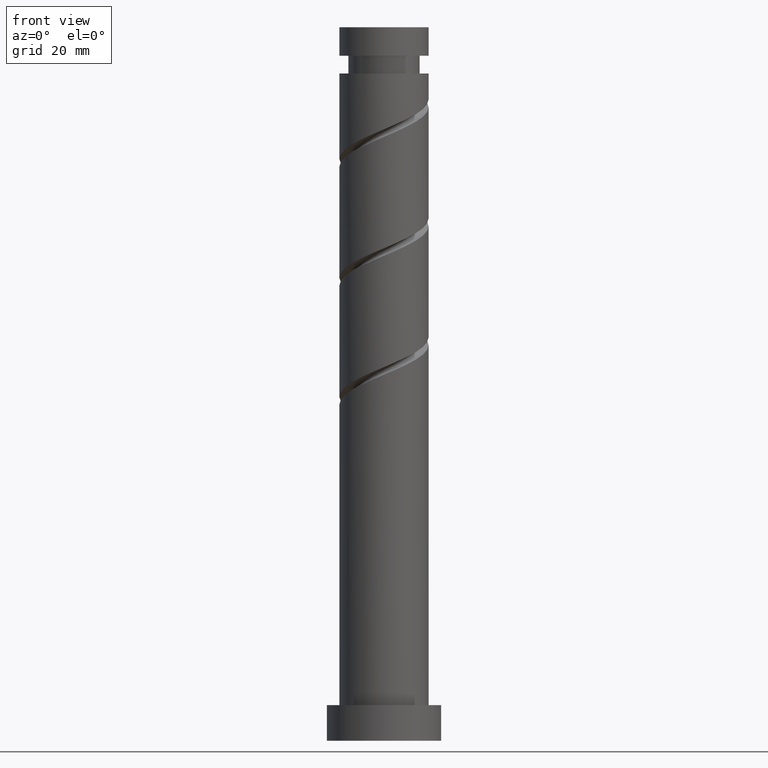
[diagram: clean part render]
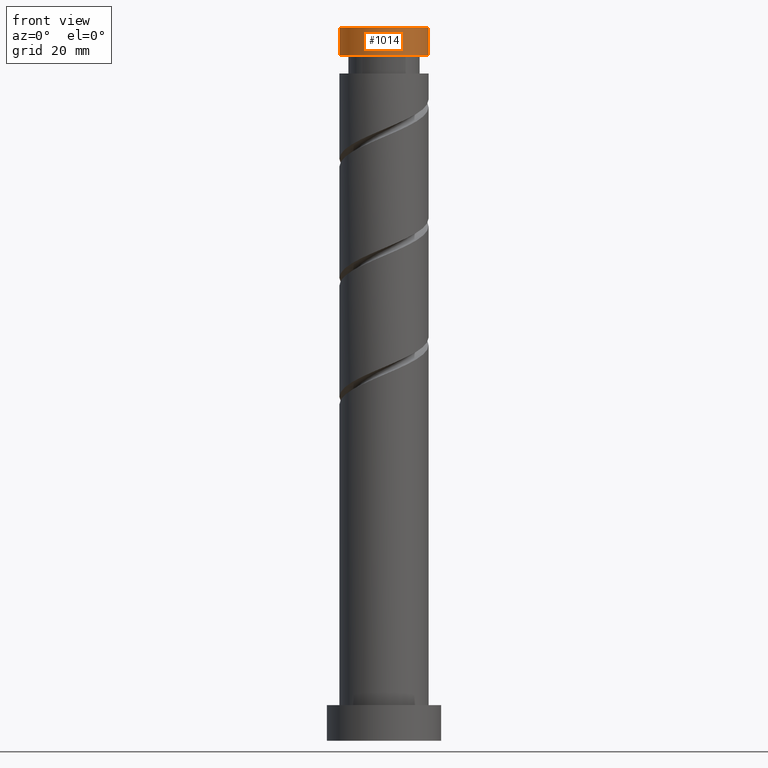
[diagram: same view with one face highlighted and labeled with its STEP entity id]
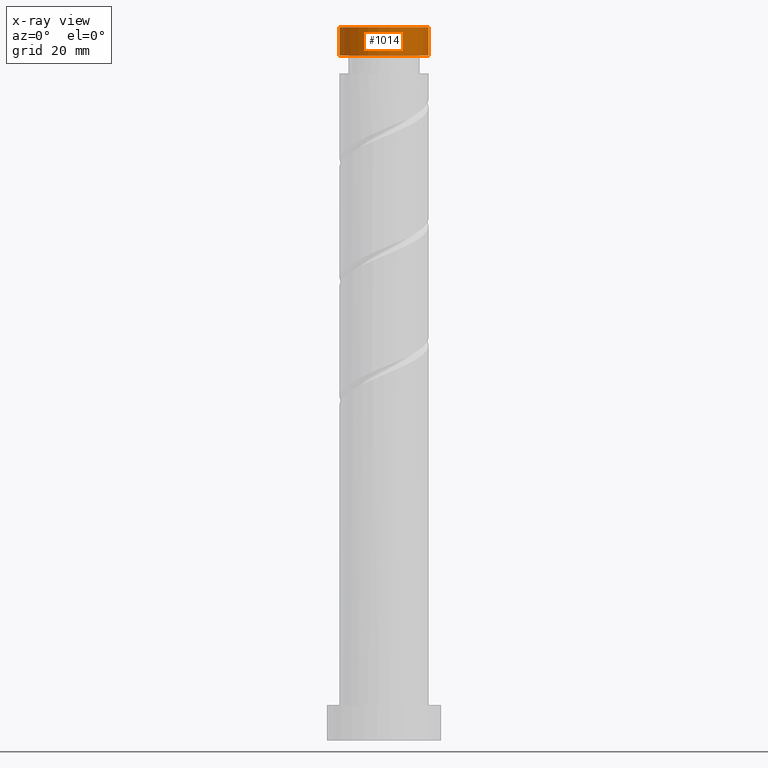
[diagram: x-ray of the same camera — body ghosted, the highlighted face saturated]
A machine part, front view. The second image highlights one B-rep face of the part: STEP entity #1014.
The next image is the same camera in x-ray: the body ghosted, the highlighted face saturated — about 0% of this face is hidden behind the body in this view.
In plain terms, the highlighted cylindrical surface (partial cylindrical patch) has radius 12.5 mm, axis along (-0, -0, -1).
Its self-contained STEP definition (entity closure, byte-faithful):
#48 = DIRECTION ( 'NONE',  ( -1.000000000000000000, 0.000000000000000000, 0.000000000000000000 ) ) ;
#76 = LINE ( 'NONE', #478, #1344 ) ;
#96 = CARTESIAN_POINT ( 'NONE',  ( 12.50000000000000000, 1.530808498934191521E-15, 200.0000000000000000 ) ) ;
#183 = ORIENTED_EDGE ( 'NONE', *, *, #1465, .F. ) ;
#267 = VERTEX_POINT ( 'NONE', #1061 ) ;
#273 = DIRECTION ( 'NONE',  ( -1.000000000000000000, 0.000000000000000000, 0.000000000000000000 ) ) ;
#358 = LINE ( 'NONE', #96, #1183 ) ;
#379 = AXIS2_PLACEMENT_3D ( 'NONE', #1579, #1715, #654 ) ;
#403 = CARTESIAN_POINT ( 'NONE',  ( 12.49999999999999112, 1.530808498934190732E-15, 192.0234905849320342 ) ) ;
#465 = CIRCLE ( 'NONE', #1540, 12.49999999999999112 ) ;
#478 = CARTESIAN_POINT ( 'NONE',  ( -12.50000000000000000, 0.000000000000000000, 200.0000000000000000 ) ) ;
#637 = FACE_OUTER_BOUND ( 'NONE', #1321, .T. ) ;
#654 = DIRECTION ( 'NONE',  ( 1.000000000000000000, 0.000000000000000000, 0.000000000000000000 ) ) ;
#735 = DIRECTION ( 'NONE',  ( -0.000000000000000000, -0.000000000000000000, -1.000000000000000000 ) ) ;
#755 = CARTESIAN_POINT ( 'NONE',  ( -12.50000000000000000, 0.000000000000000000, 200.0000000000000000 ) ) ;
#828 = EDGE_CURVE ( 'NONE', #1722, #1189, #1290, .T. ) ;
#877 = ORIENTED_EDGE ( 'NONE', *, *, #1370, .F. ) ;
#943 = DIRECTION ( 'NONE',  ( -0.000000000000000000, -0.000000000000000000, -1.000000000000000000 ) ) ;
#946 = AXIS2_PLACEMENT_3D ( 'NONE', #1486, #943, #273 ) ;
#1014 = ADVANCED_FACE ( 'NONE', ( #637 ), #1124, .T. ) ;
#1061 = CARTESIAN_POINT ( 'NONE',  ( -12.49999999999999112, 0.000000000000000000, 192.0234905849320342 ) ) ;
#1105 = VERTEX_POINT ( 'NONE', #403 ) ;
#1124 = CYLINDRICAL_SURFACE ( 'NONE', #946, 12.50000000000000000 ) ;
#1136 = CARTESIAN_POINT ( 'NONE',  ( 12.50000000000000000, 1.530808498934191521E-15, 200.0000000000000000 ) ) ;
#1183 = VECTOR ( 'NONE', #1438, 1000.000000000000000 ) ;
#1189 = VERTEX_POINT ( 'NONE', #1136 ) ;
#1283 = CARTESIAN_POINT ( 'NONE',  ( 0.000000000000000000, 0.000000000000000000, 192.0234905849320342 ) ) ;
#1290 = CIRCLE ( 'NONE', #379, 12.50000000000000000 ) ;
#1294 = DIRECTION ( 'NONE',  ( -0.000000000000000000, -0.000000000000000000, -1.000000000000000000 ) ) ;
#1321 = EDGE_LOOP ( 'NONE', ( #183, #1561, #1494, #877 ) ) ;
#1344 = VECTOR ( 'NONE', #735, 1000.000000000000000 ) ;
#1370 = EDGE_CURVE ( 'NONE', #1105, #267, #465, .T. ) ;
#1438 = DIRECTION ( 'NONE',  ( -0.000000000000000000, -0.000000000000000000, -1.000000000000000000 ) ) ;
#1465 = EDGE_CURVE ( 'NONE', #1189, #1105, #358, .T. ) ;
#1486 = CARTESIAN_POINT ( 'NONE',  ( 0.000000000000000000, 0.000000000000000000, 200.0000000000000000 ) ) ;
#1494 = ORIENTED_EDGE ( 'NONE', *, *, #1681, .T. ) ;
#1540 = AXIS2_PLACEMENT_3D ( 'NONE', #1283, #1294, #48 ) ;
#1561 = ORIENTED_EDGE ( 'NONE', *, *, #828, .F. ) ;
#1579 = CARTESIAN_POINT ( 'NONE',  ( 0.000000000000000000, 0.000000000000000000, 200.0000000000000000 ) ) ;
#1681 = EDGE_CURVE ( 'NONE', #1722, #267, #76, .T. ) ;
#1715 = DIRECTION ( 'NONE',  ( 0.000000000000000000, 0.000000000000000000, 1.000000000000000000 ) ) ;
#1722 = VERTEX_POINT ( 'NONE', #755 ) ;